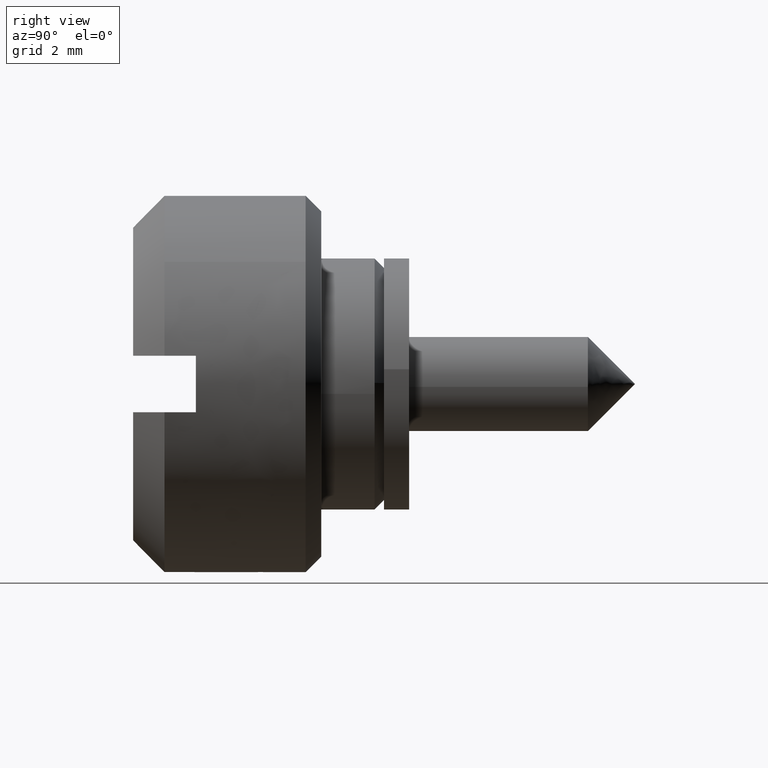
[diagram: clean part render]
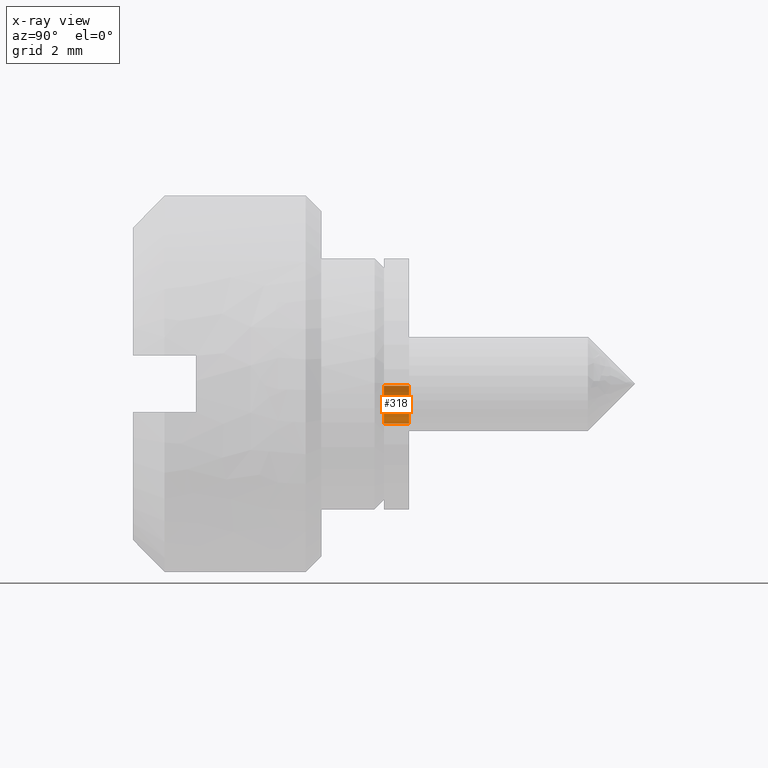
[diagram: x-ray — body ghosted, one internal face saturated and labeled with its STEP entity id]
A machine part, right view, then the same camera in x-ray: the body is ghosted and one INTERNAL B-rep face — a face not visible from any outside direction — is saturated and labeled: STEP entity #318.
In plain terms, the highlighted face is a freeform B-spline surface patch.
Its self-contained STEP definition (entity closure, byte-faithful):
#235=CARTESIAN_POINT('',(0.799999999999983,1.498863048791798,-0.058391446004850));
#236=VERTEX_POINT('',#235);
#251=CARTESIAN_POINT('',(0.0,1.498863048791798,-0.058391446004851));
#252=VERTEX_POINT('',#251);
#258=CARTESIAN_POINT('',(0.0,1.498863048791798,-0.058391446004851));
#259=CARTESIAN_POINT('',(0.799999999999983,1.498863048791798,-0.058391446004850));
#260=QUASI_UNIFORM_CURVE('',1,(#258,#259),.UNSPECIFIED.,.F.,.U.);
#261=EDGE_CURVE('',#252,#236,#260,.T.);
#266=CARTESIAN_POINT('',(-0.020000000000001,1.499983462392322,-0.007043617645713));
#267=CARTESIAN_POINT('',(0.820500000000024,1.499983462392322,-0.007043617645713));
#268=CARTESIAN_POINT('',(-0.020000000000001,1.495903190717347,-0.875963587785538));
#269=CARTESIAN_POINT('',(0.820500000000024,1.495903190717347,-0.875963587785538));
#270=CARTESIAN_POINT('',(-0.020000000000001,0.740109041188850,-1.304698665267231));
#271=CARTESIAN_POINT('',(0.820500000000024,0.740109041188850,-1.304698665267231));
#279=(BOUNDED_SURFACE()B_SPLINE_SURFACE(1,2,((#266,#268,#270),(#267,#269,#271)),.UNSPECIFIED.,.F.,.F.,.U.)B_SPLINE_SURFACE_WITH_KNOTS((2,2),(3,3),(0.0,1.0),(0.0,0.969064252572693),.UNSPECIFIED.)GEOMETRIC_REPRESENTATION_ITEM()RATIONAL_B_SPLINE_SURFACE(((1.0,0.861585937011952,0.991436115014029),(1.0,0.861585937011952,0.991436115014029)))REPRESENTATION_ITEM('')SURFACE());
#280=CARTESIAN_POINT('',(0.800000000000023,0.800000000000000,-1.268857754044794));
#281=VERTEX_POINT('',#280);
#282=CARTESIAN_POINT('',(0.800000000000023,0.799999999999997,-1.268857754044790));
#283=CARTESIAN_POINT('',(0.800000000000023,1.468117033667516,-0.847617764589615));
#284=CARTESIAN_POINT('',(0.799999999999983,1.498863048791798,-0.058391446004850));
#292=(BOUNDED_CURVE()B_SPLINE_CURVE(2,(#282,#283,#284),.UNSPECIFIED.,.F.,.U.)CURVE()GEOMETRIC_REPRESENTATION_ITEM()QUASI_UNIFORM_CURVE()RATIONAL_B_SPLINE_CURVE((1.0,0.884832800033341,1.0))REPRESENTATION_ITEM(''));
#293=EDGE_CURVE('',#281,#236,#292,.T.);
#294=ORIENTED_EDGE('',*,*,#293,.T.);
#295=ORIENTED_EDGE('',*,*,#261,.F.);
#296=CARTESIAN_POINT('',(0.0,0.800000000000000,-1.268857754044794));
#297=VERTEX_POINT('',#296);
#298=CARTESIAN_POINT('',(0.0,0.799999999999997,-1.268857754044790));
#299=CARTESIAN_POINT('',(0.0,1.468117033667516,-0.847617764589615));
#300=CARTESIAN_POINT('',(0.0,1.498863048791798,-0.058391446004851));
#308=(BOUNDED_CURVE()B_SPLINE_CURVE(2,(#298,#299,#300),.UNSPECIFIED.,.F.,.U.)CURVE()GEOMETRIC_REPRESENTATION_ITEM()QUASI_UNIFORM_CURVE()RATIONAL_B_SPLINE_CURVE((1.0,0.884832800033341,1.0))REPRESENTATION_ITEM(''));
#309=EDGE_CURVE('',#297,#252,#308,.T.);
#310=ORIENTED_EDGE('',*,*,#309,.F.);
#311=CARTESIAN_POINT('',(0.0,0.800000000000000,-1.268857754044794));
#312=CARTESIAN_POINT('',(0.800000000000023,0.800000000000000,-1.268857754044794));
#313=QUASI_UNIFORM_CURVE('',1,(#311,#312),.UNSPECIFIED.,.F.,.U.);
#314=EDGE_CURVE('',#297,#281,#313,.T.);
#315=ORIENTED_EDGE('',*,*,#314,.T.);
#316=EDGE_LOOP('',(#294,#295,#310,#315));
#317=FACE_OUTER_BOUND('',#316,.T.);
#318=ADVANCED_FACE('',(#317),#279,.F.);